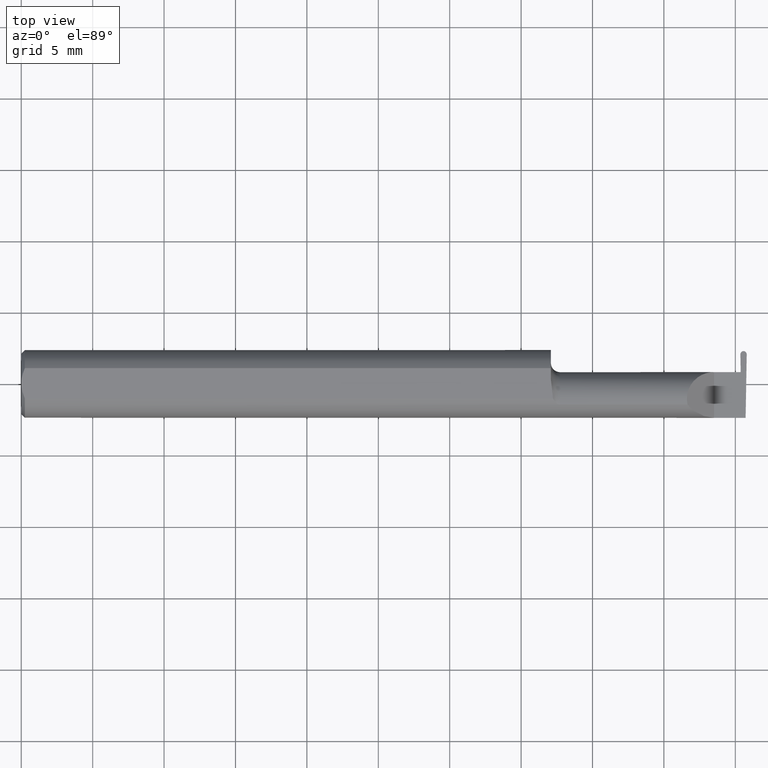
[diagram: clean part render]
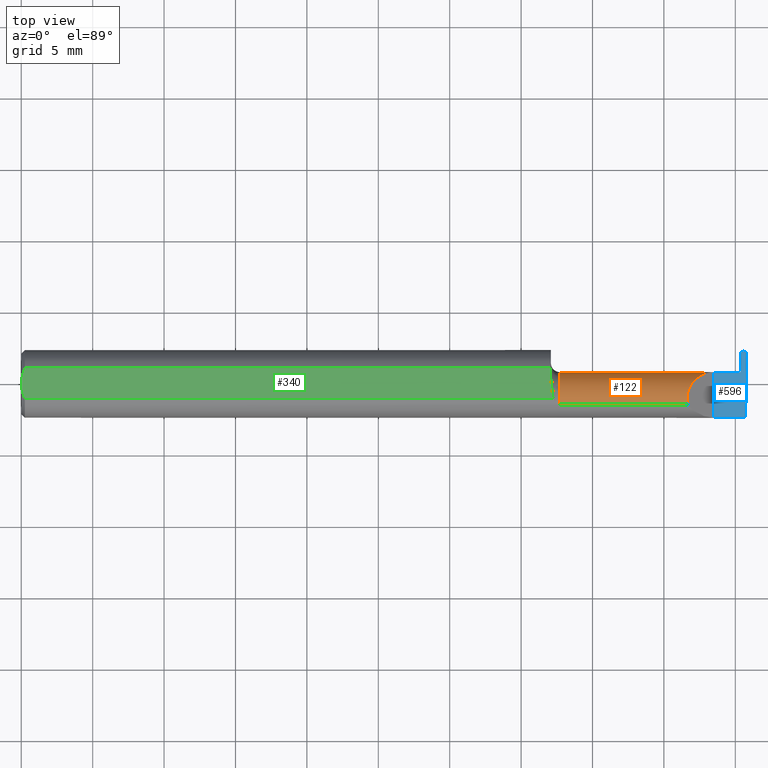
[diagram: same view with three faces highlighted in distinct colors, each labeled with its STEP entity id]
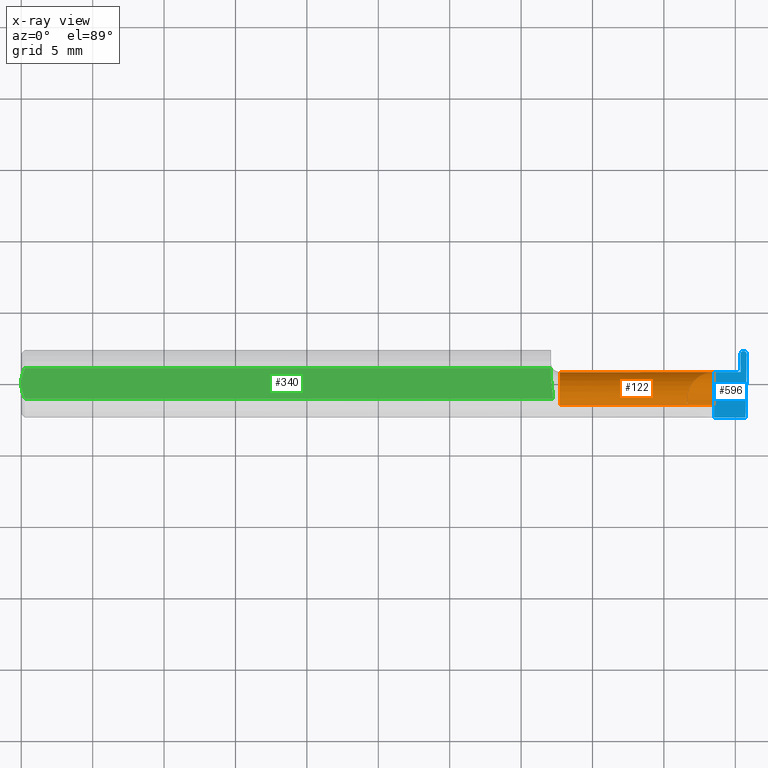
[diagram: x-ray of the same camera — body ghosted, the three highlighted faces saturated]
A machine part, top view with three faces highlighted in distinct colors.
The next image is the same camera in x-ray (body ghosted, the three faces saturated) — at least one of them is partly hidden behind the body in this view.
Their STEP definitions:

[orange] entity #122 — the highlighted cylindrical surface (edge-blend (fillet) strip) has radius 1.905 mm, axis along (-1, -0, -0).
#1 = AXIS2_PLACEMENT_3D ( 'NONE', #292, #599, #550 ) ;
#11 = CYLINDRICAL_SURFACE ( 'NONE', #1, 0.07500000000000003886 ) ;
#23 = EDGE_CURVE ( 'NONE', #565, #394, #87, .T. ) ;
#24 = CARTESIAN_POINT ( 'NONE',  ( 1.977144687181002336, 0.03221730376948680336, -0.005231735530809601513 ) ) ;
#30 = CARTESIAN_POINT ( 'NONE',  ( 1.986094660071884288, -0.04260000000000003367, -0.07500000000000002498 ) ) ;
#39 = VERTEX_POINT ( 'NONE', #684 ) ;
#42 = VECTOR ( 'NONE', #613, 39.37007874015748143 ) ;
#44 = EDGE_CURVE ( 'NONE', #257, #585, #182, .T. ) ;
#54 = ORIENTED_EDGE ( 'NONE', *, *, #218, .T. ) ;
#56 = CARTESIAN_POINT ( 'NONE',  ( 1.910000000000000142, 0.03239999999999998437, 6.613092715395735816E-17 ) ) ;
#68 = B_SPLINE_CURVE_WITH_KNOTS ( 'NONE', 3,
 ( #24, #133, #190, #81 ),
 .UNSPECIFIED., .F., .F.,
 ( 4, 4 ),
 ( 0.000000000000000000, 1.000000000000000000 ),
 .UNSPECIFIED. ) ;
#81 = CARTESIAN_POINT ( 'NONE',  ( 1.977327383411515482, 0.03239999999999999825, 0.000000000000000000 ) ) ;
#86 = CARTESIAN_POINT ( 'NONE',  ( 2.115884466375952400, -0.04259999999999973530, -0.07500000000000002498 ) ) ;
#87 =( BOUNDED_CURVE ( )  B_SPLINE_CURVE ( 3, ( #168, #262, #321, #92 ),
 .UNSPECIFIED., .F., .T. ) 
 B_SPLINE_CURVE_WITH_KNOTS ( ( 4, 4 ),
 ( 0.2552020043920813497, 0.4634648172053402182 ),
 .UNSPECIFIED. ) 
 CURVE ( )  GEOMETRIC_REPRESENTATION_ITEM ( )  RATIONAL_B_SPLINE_CURVE ( ( 1.000000000000000000, 0.9963888149483994816, 0.9963888149483994816, 1.000000000000000000 ) ) 
 REPRESENTATION_ITEM ( '' )  );
#92 = CARTESIAN_POINT ( 'NONE',  ( 1.995213246285213016, -0.04259999999999973530, -0.07500000000000002498 ) ) ;
#105 = CIRCLE ( 'NONE', #530, 0.07500000000000003886 ) ;
#115 = DIRECTION ( 'NONE',  ( -1.000000000000000000, -3.267875774690260159E-17, -0.000000000000000000 ) ) ;
#119 = ORIENTED_EDGE ( 'NONE', *, *, #44, .F. ) ;
#122 = ADVANCED_FACE ( 'NONE', ( #402 ), #11, .T. ) ;
#123 = VERTEX_POINT ( 'NONE', #459 ) ;
#124 = CARTESIAN_POINT ( 'NONE',  ( 1.994999172194938941, -0.05810704225352106983, -0.07337936794867833123 ) ) ;
#128 = VECTOR ( 'NONE', #670, 39.37007874015748143 ) ;
#133 = CARTESIAN_POINT ( 'NONE',  ( 1.977205585924506570, 0.03227820251299119703, -0.003487823687206395660 ) ) ;
#151 = VERTEX_POINT ( 'NONE', #56 ) ;
#168 = CARTESIAN_POINT ( 'NONE',  ( 1.994999172194938941, -0.05810704225352106983, -0.07337936794867833123 ) ) ;
#178 = EDGE_CURVE ( 'NONE', #151, #413, #453, .T. ) ;
#182 =( BOUNDED_CURVE ( )  B_SPLINE_CURVE ( 3, ( #641, #331, #584, #266 ),
 .UNSPECIFIED., .F., .F. ) 
 B_SPLINE_CURVE_WITH_KNOTS ( ( 4, 4 ),
 ( 3.176499238629678867, 4.677482395344799926 ),
 .UNSPECIFIED. ) 
 CURVE ( )  GEOMETRIC_REPRESENTATION_ITEM ( )  RATIONAL_B_SPLINE_CURVE ( ( 1.000000000000000000, 0.8209024677461141950, 0.8209024677461141950, 1.000000000000000000 ) ) 
 REPRESENTATION_ITEM ( '' )  );
#184 = EDGE_CURVE ( 'NONE', #565, #39, #335, .T. ) ;
#186 = CARTESIAN_POINT ( 'NONE',  ( 1.733740805000000051, -0.05810704225352107677, 0.07337936794867833123 ) ) ;
#190 = CARTESIAN_POINT ( 'NONE',  ( 1.977266484668011248, 0.03233910125649559764, -0.001743911843603197613 ) ) ;
#196 = CARTESIAN_POINT ( 'NONE',  ( 1.459999999999999964, 0.03221730376948683805, -0.005231735530808946655 ) ) ;
#218 = EDGE_CURVE ( 'NONE', #485, #123, #574, .T. ) ;
#219 = ORIENTED_EDGE ( 'NONE', *, *, #23, .F. ) ;
#232 = CARTESIAN_POINT ( 'NONE',  ( 1.484999999999999876, -0.04260000000000005449, 0.000000000000000000 ) ) ;
#233 = EDGE_CURVE ( 'NONE', #394, #257, #514, .T. ) ;
#242 =( BOUNDED_CURVE ( )  B_SPLINE_CURVE ( 3, ( #251, #244, #415, #245 ),
 .UNSPECIFIED., .F., .F. ) 
 B_SPLINE_CURVE_WITH_KNOTS ( ( 4, 4 ),
 ( 6.074922494366330916, 7.853981633974482790 ),
 .UNSPECIFIED. ) 
 CURVE ( )  GEOMETRIC_REPRESENTATION_ITEM ( )  RATIONAL_B_SPLINE_CURVE ( ( 1.000000000000000000, 0.7531850099525148057, 0.7531850099525148057, 1.000000000000000000 ) ) 
 REPRESENTATION_ITEM ( '' )  );
#244 = CARTESIAN_POINT ( 'NONE',  ( 1.825958805822864628, -0.007655250284932078528, 0.08404119417713461215 ) ) ;
#245 = CARTESIAN_POINT ( 'NONE',  ( 1.910000000000000142, 0.03239999999999998437, 6.613092715395735816E-17 ) ) ;
#249 = VERTEX_POINT ( 'NONE', #357 ) ;
#251 = CARTESIAN_POINT ( 'NONE',  ( 1.836620632051321200, -0.05810704225352102820, 0.07337936794867834511 ) ) ;
#257 = VERTEX_POINT ( 'NONE', #30 ) ;
#262 = CARTESIAN_POINT ( 'NONE',  ( 1.995050583981878400, -0.05300374992736046897, -0.07445783144524575903 ) ) ;
#266 = CARTESIAN_POINT ( 'NONE',  ( 1.983525690212190273, 0.03221730376948681029, -0.005231735530809572890 ) ) ;
#292 = CARTESIAN_POINT ( 'NONE',  ( 1.459999999999999964, -0.04260000000000005449, 0.000000000000000000 ) ) ;
#302 = ORIENTED_EDGE ( 'NONE', *, *, #630, .F. ) ;
#303 = DIRECTION ( 'NONE',  ( -1.000000000000000000, -3.267875774690260159E-17, -0.000000000000000000 ) ) ;
#321 = CARTESIAN_POINT ( 'NONE',  ( 1.995122200632949427, -0.04781600192481511025, -0.07500000000000003886 ) ) ;
#324 = EDGE_CURVE ( 'NONE', #123, #151, #242, .T. ) ;
#331 = CARTESIAN_POINT ( 'NONE',  ( 1.986043175114837744, -0.001060451341131600413, -0.07500000000000006661 ) ) ;
#335 = LINE ( 'NONE', #657, #537 ) ;
#357 = CARTESIAN_POINT ( 'NONE',  ( 1.977144687181002336, 0.03221730376948680336, -0.005231735530809601513 ) ) ;
#360 = VECTOR ( 'NONE', #396, 39.37007874015748143 ) ;
#369 = CARTESIAN_POINT ( 'NONE',  ( 1.484999999999999876, -0.05810704225352104207, 0.07337936794867834511 ) ) ;
#379 = ORIENTED_EDGE ( 'NONE', *, *, #511, .F. ) ;
#389 = ORIENTED_EDGE ( 'NONE', *, *, #233, .F. ) ;
#392 = CARTESIAN_POINT ( 'NONE',  ( 1.983525690212190273, 0.03221730376948681029, -0.005231735530809572890 ) ) ;
#394 = VERTEX_POINT ( 'NONE', #695 ) ;
#396 = DIRECTION ( 'NONE',  ( 1.000000000000000000, 3.267875774690260159E-17, 0.000000000000000000 ) ) ;
#402 = FACE_OUTER_BOUND ( 'NONE', #432, .T. ) ;
#413 = VERTEX_POINT ( 'NONE', #535 ) ;
#415 = CARTESIAN_POINT ( 'NONE',  ( 1.858433946715231100, 0.03239999999999999131, 0.05156605328476845940 ) ) ;
#432 = EDGE_LOOP ( 'NONE', ( #505, #379, #54, #443, #682, #302, #447, #119, #389, #219 ) ) ;
#443 = ORIENTED_EDGE ( 'NONE', *, *, #324, .T. ) ;
#447 = ORIENTED_EDGE ( 'NONE', *, *, #690, .F. ) ;
#453 = LINE ( 'NONE', #595, #360 ) ;
#459 = CARTESIAN_POINT ( 'NONE',  ( 1.836620632051321200, -0.05810704225352102820, 0.07337936794867834511 ) ) ;
#464 = LINE ( 'NONE', #196, #516 ) ;
#485 = VERTEX_POINT ( 'NONE', #369 ) ;
#505 = ORIENTED_EDGE ( 'NONE', *, *, #184, .T. ) ;
#511 = EDGE_CURVE ( 'NONE', #485, #39, #105, .T. ) ;
#514 = LINE ( 'NONE', #86, #128 ) ;
#516 = VECTOR ( 'NONE', #303, 39.37007874015748143 ) ;
#530 = AXIS2_PLACEMENT_3D ( 'NONE', #232, #115, #549 ) ;
#535 = CARTESIAN_POINT ( 'NONE',  ( 1.977327383411515482, 0.03239999999999999825, 0.000000000000000000 ) ) ;
#537 = VECTOR ( 'NONE', #603, 39.37007874015748143 ) ;
#549 = DIRECTION ( 'NONE',  ( 0.000000000000000000, -1.000000000000000000, 0.000000000000000000 ) ) ;
#550 = DIRECTION ( 'NONE',  ( 0.000000000000000000, -1.000000000000000000, 0.000000000000000000 ) ) ;
#565 = VERTEX_POINT ( 'NONE', #124 ) ;
#574 = LINE ( 'NONE', #186, #42 ) ;
#584 = CARTESIAN_POINT ( 'NONE',  ( 1.985000026482436342, 0.02931965133412153812, -0.04667009593691545666 ) ) ;
#585 = VERTEX_POINT ( 'NONE', #392 ) ;
#595 = CARTESIAN_POINT ( 'NONE',  ( 1.459999999999999964, 0.03239999999999997743, 6.613092715395735816E-17 ) ) ;
#599 = DIRECTION ( 'NONE',  ( -1.000000000000000000, -3.267875774690260159E-17, -0.000000000000000000 ) ) ;
#603 = DIRECTION ( 'NONE',  ( -1.000000000000000000, -3.267875774690260159E-17, -0.000000000000000000 ) ) ;
#613 = DIRECTION ( 'NONE',  ( 1.000000000000000000, 3.267875774690260159E-17, 0.000000000000000000 ) ) ;
#630 = EDGE_CURVE ( 'NONE', #249, #413, #68, .T. ) ;
#641 = CARTESIAN_POINT ( 'NONE',  ( 1.986094660071884288, -0.04260000000000003367, -0.07500000000000002498 ) ) ;
#657 = CARTESIAN_POINT ( 'NONE',  ( 1.733740805000000051, -0.05810704225352107677, -0.07337936794867833123 ) ) ;
#670 = DIRECTION ( 'NONE',  ( -1.000000000000000000, -0.000000000000000000, -0.000000000000000000 ) ) ;
#682 = ORIENTED_EDGE ( 'NONE', *, *, #178, .T. ) ;
#684 = CARTESIAN_POINT ( 'NONE',  ( 1.484999999999999876, -0.05810704225352104901, -0.07337936794867834511 ) ) ;
#690 = EDGE_CURVE ( 'NONE', #585, #249, #464, .T. ) ;
#695 = CARTESIAN_POINT ( 'NONE',  ( 1.995213246285213016, -0.04259999999999973530, -0.07500000000000002498 ) ) ;

[blue] entity #596 — the highlighted planar face has unit normal (-0, 0, -1).
#28 = VERTEX_POINT ( 'NONE', #691 ) ;
#56 = CARTESIAN_POINT ( 'NONE',  ( 1.910000000000000142, 0.03239999999999998437, 6.613092715395735816E-17 ) ) ;
#63 = CARTESIAN_POINT ( 'NONE',  ( 2.999519565323742037E-32, -0.09359999999999998876, 2.449293598294716768E-16 ) ) ;
#66 = DIRECTION ( 'NONE',  ( -0.01745240643727645827, -0.9998476951563912696, 0.000000000000000000 ) ) ;
#67 = DIRECTION ( 'NONE',  ( -0.01745240643727688848, 0.9998476951563912696, -0.000000000000000000 ) ) ;
#78 = EDGE_CURVE ( 'NONE', #159, #552, #449, .T. ) ;
#79 = VECTOR ( 'NONE', #67, 39.37007874015748143 ) ;
#100 = ORIENTED_EDGE ( 'NONE', *, *, #581, .F. ) ;
#107 = LINE ( 'NONE', #63, #430 ) ;
#130 = DIRECTION ( 'NONE',  ( 1.000000000000000000, -0.000000000000000000, -0.000000000000000000 ) ) ;
#135 =( BOUNDED_CURVE ( )  B_SPLINE_CURVE ( 3, ( #647, #167, #557, #350 ),
 .UNSPECIFIED., .F., .F. ) 
 B_SPLINE_CURVE_WITH_KNOTS ( ( 4, 4 ),
 ( 6.177091236413993158, 7.752341154236727760 ),
 .UNSPECIFIED. ) 
 CURVE ( )  GEOMETRIC_REPRESENTATION_ITEM ( )  RATIONAL_B_SPLINE_CURVE ( ( 1.000000000000000000, 0.8036869647627045143, 0.8036869647627045143, 1.000000000000000000 ) ) 
 REPRESENTATION_ITEM ( '' )  );
#141 = VECTOR ( 'NONE', #481, 39.37007874015748143 ) ;
#144 = CARTESIAN_POINT ( 'NONE',  ( 1.991358560907505959, 0.09039999999999999425, 0.000000000000000000 ) ) ;
#151 = VERTEX_POINT ( 'NONE', #56 ) ;
#159 = VERTEX_POINT ( 'NONE', #174 ) ;
#160 = DIRECTION ( 'NONE',  ( 1.000000000000000000, -0.000000000000000000, -0.000000000000000000 ) ) ;
#166 = ORIENTED_EDGE ( 'NONE', *, *, #533, .T. ) ;
#167 = CARTESIAN_POINT ( 'NONE',  ( 1.985975431331754804, 0.09040000000000000813, -7.891494905330330497E-18 ) ) ;
#170 = FACE_OUTER_BOUND ( 'NONE', #688, .T. ) ;
#174 = CARTESIAN_POINT ( 'NONE',  ( 1.983339777177351770, 0.03239999999999999825, 0.000000000000000000 ) ) ;
#178 = EDGE_CURVE ( 'NONE', #151, #413, #453, .T. ) ;
#215 = ORIENTED_EDGE ( 'NONE', *, *, #468, .F. ) ;
#231 = VERTEX_POINT ( 'NONE', #620 ) ;
#243 = VECTOR ( 'NONE', #130, 39.37007874015748143 ) ;
#246 = CARTESIAN_POINT ( 'NONE',  ( 1.999990968925781987, 0.08104697476785363564, 0.000000000000000000 ) ) ;
#250 = CARTESIAN_POINT ( 'NONE',  ( 1.991123049092493602, 0.09039999999999999425, 0.000000000000000000 ) ) ;
#258 = LINE ( 'NONE', #529, #141 ) ;
#281 = VECTOR ( 'NONE', #66, 39.37007874015748143 ) ;
#286 = CARTESIAN_POINT ( 'NONE',  ( 1.982482944067824659, 0.08148793596879662371, 0.000000000000000000 ) ) ;
#288 = CARTESIAN_POINT ( 'NONE',  ( 2.000000000000000000, -0.2500000000000000555, 0.000000000000000000 ) ) ;
#290 = PLANE ( 'NONE',  #593 ) ;
#309 = CARTESIAN_POINT ( 'NONE',  ( 1.991358560907505959, 0.09039999999999999425, 0.000000000000000000 ) ) ;
#316 = ORIENTED_EDGE ( 'NONE', *, *, #178, .F. ) ;
#337 = DIRECTION ( 'NONE',  ( -1.000000000000000000, -0.000000000000000000, -0.000000000000000000 ) ) ;
#346 = CARTESIAN_POINT ( 'NONE',  ( 1.999998665932175124, 0.08148793596879662371, 0.000000000000000000 ) ) ;
#350 = CARTESIAN_POINT ( 'NONE',  ( 1.982490641074217796, 0.08104697476785366339, 0.000000000000000000 ) ) ;
#356 = CARTESIAN_POINT ( 'NONE',  ( 1.996506178668245202, 0.09039999999999986935, -6.455300748705125713E-19 ) ) ;
#360 = VECTOR ( 'NONE', #396, 39.37007874015748143 ) ;
#377 = LINE ( 'NONE', #532, #541 ) ;
#396 = DIRECTION ( 'NONE',  ( 1.000000000000000000, 3.267875774690260159E-17, 0.000000000000000000 ) ) ;
#413 = VERTEX_POINT ( 'NONE', #535 ) ;
#416 = LINE ( 'NONE', #520, #243 ) ;
#426 =( BOUNDED_CURVE ( )  B_SPLINE_CURVE ( 3, ( #246, #619, #356, #309 ),
 .UNSPECIFIED., .F., .F. ) 
 B_SPLINE_CURVE_WITH_KNOTS ( ( 4, 4 ),
 ( 1.672436806532646703, 3.247686724355353771 ),
 .UNSPECIFIED. ) 
 CURVE ( )  GEOMETRIC_REPRESENTATION_ITEM ( )  RATIONAL_B_SPLINE_CURVE ( ( 1.000000000000000000, 0.8036869647627110647, 0.8036869647627110647, 1.000000000000000000 ) ) 
 REPRESENTATION_ITEM ( '' )  );
#430 = VECTOR ( 'NONE', #337, 39.37007874015748143 ) ;
#434 = EDGE_CURVE ( 'NONE', #671, #151, #258, .T. ) ;
#441 = VERTEX_POINT ( 'NONE', #144 ) ;
#449 = LINE ( 'NONE', #286, #79 ) ;
#451 = DIRECTION ( 'NONE',  ( -1.000000000000000000, 0.000000000000000000, 1.224646799147358877E-16 ) ) ;
#453 = LINE ( 'NONE', #595, #360 ) ;
#468 = EDGE_CURVE ( 'NONE', #634, #441, #377, .T. ) ;
#481 = DIRECTION ( 'NONE',  ( -0.000000000000000000, 1.000000000000000000, -0.000000000000000000 ) ) ;
#494 = ORIENTED_EDGE ( 'NONE', *, *, #696, .F. ) ;
#506 = LINE ( 'NONE', #346, #281 ) ;
#510 = DIRECTION ( 'NONE',  ( -1.224646799147358877E-16, 0.000000000000000000, -1.000000000000000000 ) ) ;
#515 = EDGE_CURVE ( 'NONE', #28, #671, #107, .T. ) ;
#520 = CARTESIAN_POINT ( 'NONE',  ( 1.983339777177351770, 0.03239999999999999825, 0.000000000000000000 ) ) ;
#522 = ORIENTED_EDGE ( 'NONE', *, *, #638, .T. ) ;
#529 = CARTESIAN_POINT ( 'NONE',  ( 1.910000000000000142, -0.2500000000000000555, 1.102182119232621301E-17 ) ) ;
#532 = CARTESIAN_POINT ( 'NONE',  ( -3.937007874019685528E-05, 0.09039999999999999425, 0.000000000000000000 ) ) ;
#533 = EDGE_CURVE ( 'NONE', #634, #552, #135, .T. ) ;
#535 = CARTESIAN_POINT ( 'NONE',  ( 1.977327383411515482, 0.03239999999999999825, 0.000000000000000000 ) ) ;
#541 = VECTOR ( 'NONE', #160, 39.37007874015748143 ) ;
#552 = VERTEX_POINT ( 'NONE', #649 ) ;
#557 = CARTESIAN_POINT ( 'NONE',  ( 1.982395095373120641, 0.08652078431768195355, -7.453030208168987846E-18 ) ) ;
#573 = ORIENTED_EDGE ( 'NONE', *, *, #515, .F. ) ;
#581 = EDGE_CURVE ( 'NONE', #231, #28, #506, .T. ) ;
#593 = AXIS2_PLACEMENT_3D ( 'NONE', #288, #510, #451 ) ;
#595 = CARTESIAN_POINT ( 'NONE',  ( 1.459999999999999964, 0.03239999999999997743, 6.613092715395735816E-17 ) ) ;
#596 = ADVANCED_FACE ( 'NONE', ( #170 ), #290, .F. ) ;
#614 = ORIENTED_EDGE ( 'NONE', *, *, #78, .F. ) ;
#619 = CARTESIAN_POINT ( 'NONE',  ( 2.000086514626878920, 0.08652078431768178701, -1.083994772031835482E-18 ) ) ;
#620 = CARTESIAN_POINT ( 'NONE',  ( 1.999990968925781987, 0.08104697476785363564, 0.000000000000000000 ) ) ;
#628 = ORIENTED_EDGE ( 'NONE', *, *, #434, .F. ) ;
#634 = VERTEX_POINT ( 'NONE', #250 ) ;
#638 = EDGE_CURVE ( 'NONE', #231, #441, #426, .T. ) ;
#647 = CARTESIAN_POINT ( 'NONE',  ( 1.991123049092493602, 0.09039999999999999425, 0.000000000000000000 ) ) ;
#649 = CARTESIAN_POINT ( 'NONE',  ( 1.982490641074217796, 0.08104697476785366339, 0.000000000000000000 ) ) ;
#667 = CARTESIAN_POINT ( 'NONE',  ( 1.910000000000000142, -0.09360000000000005815, 1.102182119232621301E-17 ) ) ;
#671 = VERTEX_POINT ( 'NONE', #667 ) ;
#688 = EDGE_LOOP ( 'NONE', ( #215, #166, #614, #494, #316, #628, #573, #100, #522 ) ) ;
#691 = CARTESIAN_POINT ( 'NONE',  ( 1.996942494641693600, -0.09360000000000001652, 0.000000000000000000 ) ) ;
#696 = EDGE_CURVE ( 'NONE', #413, #159, #416, .T. ) ;

[green] entity #340 — the highlighted planar face has unit normal (0, 0, 1).
#7 = CARTESIAN_POINT ( 'NONE',  ( 0.004492168231814808177, 0.02859366993844194779, 0.08359999999999991049 ) ) ;
#14 = CARTESIAN_POINT ( 'NONE',  ( 2.387527623501553705E-17, -0.01462709520273675068, 0.08359999999999991049 ) ) ;
#41 = CARTESIAN_POINT ( 'NONE',  ( 1.459999999999999964, 0.01227294415283370320, 0.08359999999999991049 ) ) ;
#50 = EDGE_LOOP ( 'NONE', ( #577, #579, #427, #531, #172, #509 ) ) ;
#53 = CARTESIAN_POINT ( 'NONE',  ( 1.459999999999999964, 0.01227294415283370320, 0.08359999999999991049 ) ) ;
#62 = VERTEX_POINT ( 'NONE', #41 ) ;
#64 = CARTESIAN_POINT ( 'NONE',  ( 0.000000000000000000, 0.000000000000000000, 0.08359999999999991049 ) ) ;
#70 = VERTEX_POINT ( 'NONE', #697 ) ;
#72 = B_SPLINE_CURVE_WITH_KNOTS ( 'NONE', 3,
 ( #179, #501, #606, #7, #173, #390 ),
 .UNSPECIFIED., .F., .F.,
 ( 4, 2, 4 ),
 ( 0.001744210492668864416, 0.002295110172257193264, 0.002846009851845522111 ),
 .UNSPECIFIED. ) ;
#73 = CARTESIAN_POINT ( 'NONE',  ( 2.191425808082400728, 0.09360000000000005815, 0.08359999999999991049 ) ) ;
#74 = EDGE_CURVE ( 'NONE', #268, #110, #217, .T. ) ;
#96 = EDGE_CURVE ( 'NONE', #110, #62, #608, .T. ) ;
#104 = CARTESIAN_POINT ( 'NONE',  ( 0.000000000000000000, -0.04209513035969864037, 0.08359999999999988274 ) ) ;
#110 = VERTEX_POINT ( 'NONE', #177 ) ;
#139 = FACE_OUTER_BOUND ( 'NONE', #50, .T. ) ;
#147 = VECTOR ( 'NONE', #678, 39.37007874015748143 ) ;
#171 = CARTESIAN_POINT ( 'NONE',  ( 1.460000000000000187, 0.003280657920457281333, 0.08359999999999991049 ) ) ;
#172 = ORIENTED_EDGE ( 'NONE', *, *, #555, .F. ) ;
#173 = CARTESIAN_POINT ( 'NONE',  ( 0.007036739039485840133, 0.03550621559607060329, 0.08359999999999991049 ) ) ;
#177 = CARTESIAN_POINT ( 'NONE',  ( 1.466129652885479473, -0.04209513035970116612, 0.08359999999999991049 ) ) ;
#179 = CARTESIAN_POINT ( 'NONE',  ( 0.000000000000000000, 0.000000000000000000, 0.08359999999999991049 ) ) ;
#180 = CARTESIAN_POINT ( 'NONE',  ( 1.466082007218903360, -0.03301619840524119137, 0.08359999999999991049 ) ) ;
#202 = EDGE_CURVE ( 'NONE', #268, #204, #361, .T. ) ;
#204 = VERTEX_POINT ( 'NONE', #64 ) ;
#217 = LINE ( 'NONE', #104, #475 ) ;
#239 = CARTESIAN_POINT ( 'NONE',  ( 0.000000000000000000, 0.000000000000000000, 0.08359999999999991049 ) ) ;
#252 = EDGE_CURVE ( 'NONE', #70, #407, #366, .T. ) ;
#268 = VERTEX_POINT ( 'NONE', #363 ) ;
#270 = AXIS2_PLACEMENT_3D ( 'NONE', #73, #474, #616 ) ;
#289 = CARTESIAN_POINT ( 'NONE',  ( 0.01000000000000016674, -0.04209513035969864037, 0.08359999999999988274 ) ) ;
#304 = LINE ( 'NONE', #478, #147 ) ;
#308 = EDGE_CURVE ( 'NONE', #62, #70, #304, .T. ) ;
#340 = ADVANCED_FACE ( 'NONE', ( #139 ), #408, .T. ) ;
#361 = B_SPLINE_CURVE_WITH_KNOTS ( 'NONE', 3,
 ( #289, #512, #14, #239 ),
 .UNSPECIFIED., .F., .F.,
 ( 4, 4 ),
 ( 0.0006429768761302093617, 0.001744210492668864416 ),
 .UNSPECIFIED. ) ;
#363 = CARTESIAN_POINT ( 'NONE',  ( 0.01000000000000016674, -0.04209513035969864037, 0.08359999999999988274 ) ) ;
#366 = LINE ( 'NONE', #521, #466 ) ;
#390 = CARTESIAN_POINT ( 'NONE',  ( 0.01000000000000016674, 0.04209513035969864037, 0.08359999999999988274 ) ) ;
#407 = VERTEX_POINT ( 'NONE', #683 ) ;
#408 = PLANE ( 'NONE',  #270 ) ;
#427 = ORIENTED_EDGE ( 'NONE', *, *, #308, .T. ) ;
#466 = VECTOR ( 'NONE', #564, 39.37007874015748143 ) ;
#474 = DIRECTION ( 'NONE',  ( 0.000000000000000000, 0.000000000000000000, 1.000000000000000000 ) ) ;
#475 = VECTOR ( 'NONE', #561, 39.37007874015748143 ) ;
#478 = CARTESIAN_POINT ( 'NONE',  ( 1.459999999999999964, 0.09360000000000004428, 0.08359999999999991049 ) ) ;
#501 = CARTESIAN_POINT ( 'NONE',  ( 2.476070721796526867E-17, 0.007317304829308955878, 0.08359999999999991049 ) ) ;
#507 = CARTESIAN_POINT ( 'NONE',  ( 1.466129652885479473, -0.04209513035970116612, 0.08359999999999991049 ) ) ;
#509 = ORIENTED_EDGE ( 'NONE', *, *, #202, .F. ) ;
#512 = CARTESIAN_POINT ( 'NONE',  ( 0.004072204388638868758, -0.02891446873729324601, 0.08359999999999991049 ) ) ;
#521 = CARTESIAN_POINT ( 'NONE',  ( 0.000000000000000000, 0.04209513035969864037, 0.08359999999999988274 ) ) ;
#531 = ORIENTED_EDGE ( 'NONE', *, *, #252, .T. ) ;
#555 = EDGE_CURVE ( 'NONE', #204, #407, #72, .T. ) ;
#561 = DIRECTION ( 'NONE',  ( 1.000000000000000000, 0.000000000000000000, 0.000000000000000000 ) ) ;
#564 = DIRECTION ( 'NONE',  ( -1.000000000000000000, -0.000000000000000000, -0.000000000000000000 ) ) ;
#577 = ORIENTED_EDGE ( 'NONE', *, *, #74, .T. ) ;
#579 = ORIENTED_EDGE ( 'NONE', *, *, #96, .T. ) ;
#606 = CARTESIAN_POINT ( 'NONE',  ( 0.0009807498324118613890, 0.01453516766257752398, 0.08359999999999992437 ) ) ;
#608 = B_SPLINE_CURVE_WITH_KNOTS ( 'NONE', 3,
 ( #507, #180, #650, #662, #171, #53 ),
 .UNSPECIFIED., .F., .F.,
 ( 4, 2, 4 ),
 ( 0.009672910729349523326, 0.01035804079918429405, 0.01104317086901906476 ),
 .UNSPECIFIED. ) ;
#616 = DIRECTION ( 'NONE',  ( 1.000000000000000000, 0.000000000000000000, -0.000000000000000000 ) ) ;
#650 = CARTESIAN_POINT ( 'NONE',  ( 1.464570820222980130, -0.02392027542784319616, 0.08359999999999992437 ) ) ;
#662 = CARTESIAN_POINT ( 'NONE',  ( 1.461463898467976863, -0.005727447913487271162, 0.08359999999999991049 ) ) ;
#678 = DIRECTION ( 'NONE',  ( -3.267875774690260159E-17, 1.000000000000000000, 0.000000000000000000 ) ) ;
#683 = CARTESIAN_POINT ( 'NONE',  ( 0.01000000000000016674, 0.04209513035969864037, 0.08359999999999988274 ) ) ;
#697 = CARTESIAN_POINT ( 'NONE',  ( 1.459999999999999964, 0.04209513035969864037, 0.08359999999999988274 ) ) ;